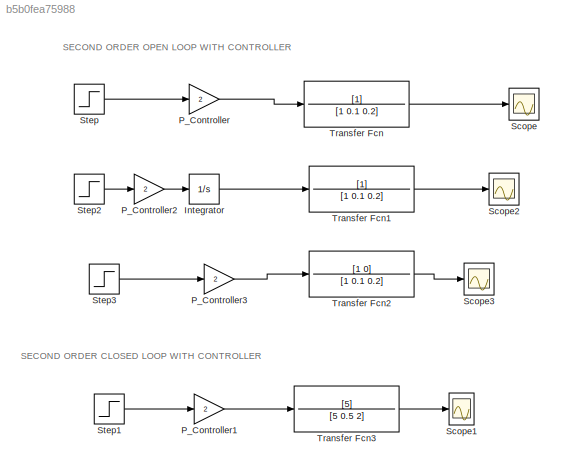
MODEL slx_b5b0fea75988
KIND model
CONFIG AbsTol = auto
CONFIG EnableMultiTasking = off
CONFIG FixedStep = auto
CONFIG MaxStep = auto
CONFIG MinStep = auto
CONFIG RelTol = 1e-3
CONFIG SampleTimeConstraint = Unconstrained
CONFIG SolverName = VariableStepAuto
CONFIG StartTime = 0.0
CONFIG StopTime = 100
BLOCK [Integrator] Integrator
  Ports = [1, 1]
BLOCK [Gain] P_Controller
  Gain = 2
BLOCK [Gain] P_Controller1
  Gain = 2
BLOCK [Gain] P_Controller2
  Gain = 2
BLOCK [Gain] P_Controller3
  Gain = 2
BLOCK [Scope] Scope
  Floating = off
  NumInputPorts = 1
  Ports = [1]
  ScopeSpecificationString = Simulink.scopes.TimeScopeBlockCfg('CurrentConfiguration', extmgr.ConfigurationSet(extmgr.Configuration('Core','General UI',true),extmgr.Configuration('Core','Source UI',true),extmgr.Configuration('Sources','WiredSimulink',true),extmgr.Configuration('Visuals','Time Domain',true,'SerializedDisplays',{struct('MinYLimReal','-2.10112','MaxYLimReal','18.91005','YLabelReal','','MinYLimMag','0.00000','Max...<+1710ch>
BLOCK [Scope] Scope1
  Floating = off
  NumInputPorts = 1
  Ports = [1]
  ScopeSpecificationString = Simulink.scopes.TimeScopeBlockCfg('CurrentConfiguration', extmgr.ConfigurationSet(extmgr.Configuration('Core','General UI',true),extmgr.Configuration('Core','Source UI',true),extmgr.Configuration('Sources','WiredSimulink',true,'DataLoggingVariableName','ScopeData1'),extmgr.Configuration('Visuals','Time Domain',true,'SerializedDisplays',{struct('MinYLimReal','-1.10945','MaxYLimReal','9.98504','YLab...<+1746ch>
BLOCK [Scope] Scope2
  Floating = off
  NumInputPorts = 1
  Ports = [1]
  ScopeSpecificationString = Simulink.scopes.TimeScopeBlockCfg('CurrentConfiguration', extmgr.ConfigurationSet(extmgr.Configuration('Core','General UI',true),extmgr.Configuration('Core','Source UI',true),extmgr.Configuration('Sources','WiredSimulink',true,'DataLoggingVariableName','ScopeData2'),extmgr.Configuration('Visuals','Time Domain',true,'SerializedDisplays',{struct('MinYLimReal','-123.12903','MaxYLimReal','1108.1613','...<+1758ch>
BLOCK [Scope] Scope3
  Floating = off
  NumInputPorts = 1
  Ports = [1]
  ScopeSpecificationString = Simulink.scopes.TimeScopeBlockCfg('CurrentConfiguration', extmgr.ConfigurationSet(extmgr.Configuration('Core','General UI',true),extmgr.Configuration('Core','Source UI',true),extmgr.Configuration('Sources','WiredSimulink',true,'DataLoggingVariableName','ScopeData3'),extmgr.Configuration('Visuals','Time Domain',true,'SerializedDisplays',{struct('MinYLimReal','-3.43769','MaxYLimReal','4.59463','YLab...<+1747ch>
BLOCK [Step] Step
  SampleTime = 0
BLOCK [Step] Step1
  SampleTime = 0
BLOCK [Step] Step2
  SampleTime = 0
BLOCK [Step] Step3
  SampleTime = 0
BLOCK [TransferFcn] Transfer Fcn
  Denominator = [1 0.1 0.2]
BLOCK [TransferFcn] Transfer Fcn1
  Denominator = [1 0.1 0.2]
BLOCK [TransferFcn] Transfer Fcn2
  Denominator = [1 0.1 0.2]
  Numerator = [1 0]
BLOCK [TransferFcn] Transfer Fcn3
  Denominator = [5 0.5 2]
  Numerator = [5]
ANNOTATION (root): SECOND ORDER CLOSED LOOP WITH CONTROLLER
ANNOTATION (root): SECOND ORDER OPEN LOOP WITH CONTROLLER
LINE Integrator:1 -> Transfer Fcn1:1
LINE P_Controller1:1 -> Transfer Fcn3:1
LINE P_Controller2:1 -> Integrator:1
LINE P_Controller3:1 -> Transfer Fcn2:1
LINE P_Controller:1 -> Transfer Fcn:1
LINE Step1:1 -> P_Controller1:1
LINE Step2:1 -> P_Controller2:1
LINE Step3:1 -> P_Controller3:1
LINE Step:1 -> P_Controller:1
LINE Transfer Fcn1:1 -> Scope2:1
LINE Transfer Fcn2:1 -> Scope3:1
LINE Transfer Fcn3:1 -> Scope1:1
LINE Transfer Fcn:1 -> Scope:1
